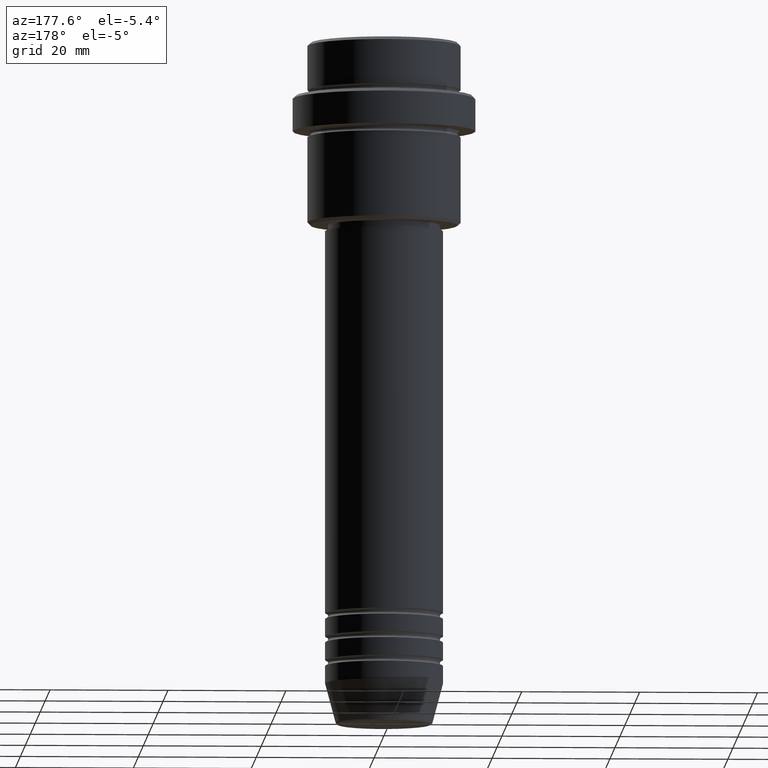
[diagram: clean part render]
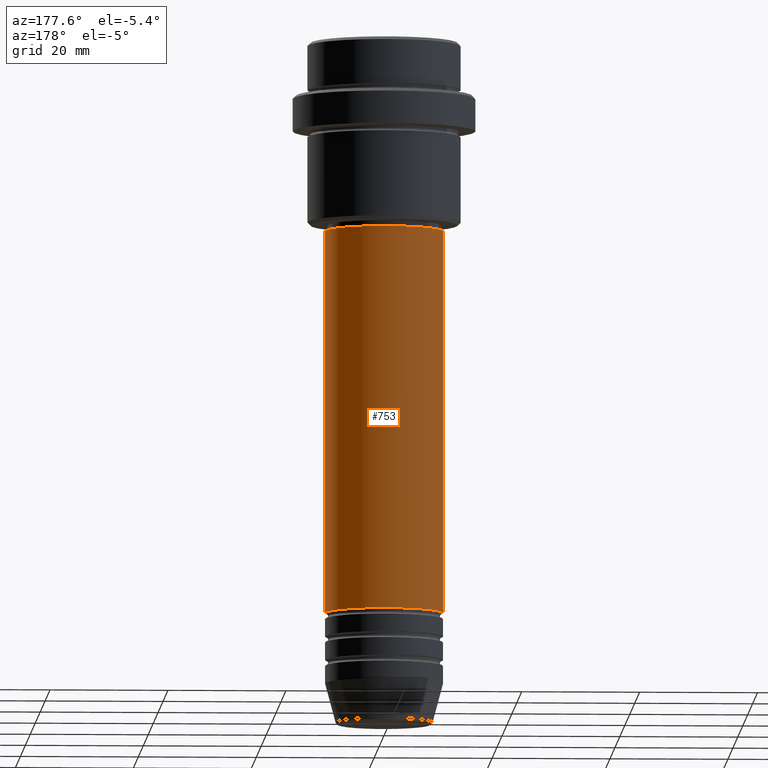
[diagram: same view with one face highlighted and labeled with its STEP entity id]
A machine part, auxiliary view. The second image highlights one B-rep face of the part: STEP entity #753.
In plain terms, the highlighted cylindrical surface (partial cylindrical patch) has radius 10 mm, axis along (-0, -0, 1).
Its self-contained STEP definition (entity closure, byte-faithful):
#20 = FACE_OUTER_BOUND ( 'NONE', #763, .T. ) ;
#55 = CYLINDRICAL_SURFACE ( 'NONE', #1022, 10.00000000000000178 ) ;
#99 = DIRECTION ( 'NONE',  ( -0.000000000000000000, -0.000000000000000000, 1.000000000000000000 ) ) ;
#113 = EDGE_CURVE ( 'NONE', #1273, #1048, #1079, .T. ) ;
#170 = CIRCLE ( 'NONE', #191, 10.00000000000000000 ) ;
#191 = AXIS2_PLACEMENT_3D ( 'NONE', #1068, #1049, #497 ) ;
#245 = DIRECTION ( 'NONE',  ( -0.000000000000000000, -0.000000000000000000, 1.000000000000000000 ) ) ;
#335 = CIRCLE ( 'NONE', #406, 10.00000000000000178 ) ;
#406 = AXIS2_PLACEMENT_3D ( 'NONE', #489, #245, #483 ) ;
#483 = DIRECTION ( 'NONE',  ( 1.000000000000000000, 0.000000000000000000, 0.000000000000000000 ) ) ;
#489 = CARTESIAN_POINT ( 'NONE',  ( 0.000000000000000000, 0.000000000000000000, -31.99999999999997868 ) ) ;
#497 = DIRECTION ( 'NONE',  ( 1.000000000000000000, 0.000000000000000000, 0.000000000000000000 ) ) ;
#532 = CARTESIAN_POINT ( 'NONE',  ( 10.00000000000000178, 0.000000000000000000, 0.000000000000000000 ) ) ;
#535 = LINE ( 'NONE', #764, #1382 ) ;
#548 = DIRECTION ( 'NONE',  ( -0.000000000000000000, -0.000000000000000000, 1.000000000000000000 ) ) ;
#709 = CARTESIAN_POINT ( 'NONE',  ( 10.00000000000000000, 0.000000000000000000, -96.99999999999988631 ) ) ;
#716 = DIRECTION ( 'NONE',  ( 1.000000000000000000, 0.000000000000000000, 0.000000000000000000 ) ) ;
#730 = ORIENTED_EDGE ( 'NONE', *, *, #1266, .T. ) ;
#753 = ADVANCED_FACE ( 'NONE', ( #20 ), #55, .T. ) ;
#762 = VECTOR ( 'NONE', #99, 1000.000000000000000 ) ;
#763 = EDGE_LOOP ( 'NONE', ( #730, #921, #1098, #815 ) ) ;
#764 = CARTESIAN_POINT ( 'NONE',  ( -10.00000000000000178, 1.224646799147353454E-15, 0.000000000000000000 ) ) ;
#815 = ORIENTED_EDGE ( 'NONE', *, *, #113, .F. ) ;
#823 = CARTESIAN_POINT ( 'NONE',  ( 0.000000000000000000, 0.000000000000000000, 0.000000000000000000 ) ) ;
#865 = CARTESIAN_POINT ( 'NONE',  ( -10.00000000000000000, 1.224646799147353256E-15, -96.99999999999988631 ) ) ;
#921 = ORIENTED_EDGE ( 'NONE', *, *, #972, .T. ) ;
#972 = EDGE_CURVE ( 'NONE', #1036, #1252, #535, .T. ) ;
#1022 = AXIS2_PLACEMENT_3D ( 'NONE', #823, #1181, #716 ) ;
#1027 = CARTESIAN_POINT ( 'NONE',  ( 10.00000000000000178, 0.000000000000000000, -31.99999999999997868 ) ) ;
#1036 = VERTEX_POINT ( 'NONE', #865 ) ;
#1048 = VERTEX_POINT ( 'NONE', #1027 ) ;
#1049 = DIRECTION ( 'NONE',  ( -0.000000000000000000, -0.000000000000000000, 1.000000000000000000 ) ) ;
#1068 = CARTESIAN_POINT ( 'NONE',  ( 0.000000000000000000, 0.000000000000000000, -96.99999999999988631 ) ) ;
#1078 = EDGE_CURVE ( 'NONE', #1048, #1252, #335, .T. ) ;
#1079 = LINE ( 'NONE', #532, #762 ) ;
#1098 = ORIENTED_EDGE ( 'NONE', *, *, #1078, .F. ) ;
#1181 = DIRECTION ( 'NONE',  ( -0.000000000000000000, -0.000000000000000000, 1.000000000000000000 ) ) ;
#1250 = CARTESIAN_POINT ( 'NONE',  ( -10.00000000000000178, 1.224646799147353454E-15, -31.99999999999997868 ) ) ;
#1252 = VERTEX_POINT ( 'NONE', #1250 ) ;
#1266 = EDGE_CURVE ( 'NONE', #1273, #1036, #170, .T. ) ;
#1273 = VERTEX_POINT ( 'NONE', #709 ) ;
#1382 = VECTOR ( 'NONE', #548, 1000.000000000000000 ) ;